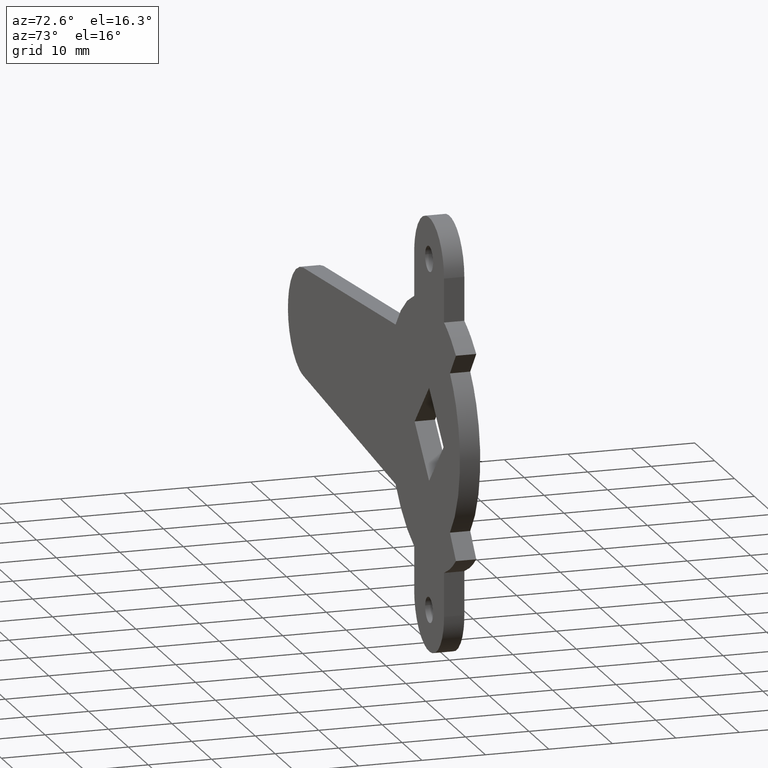
[diagram: clean part render]
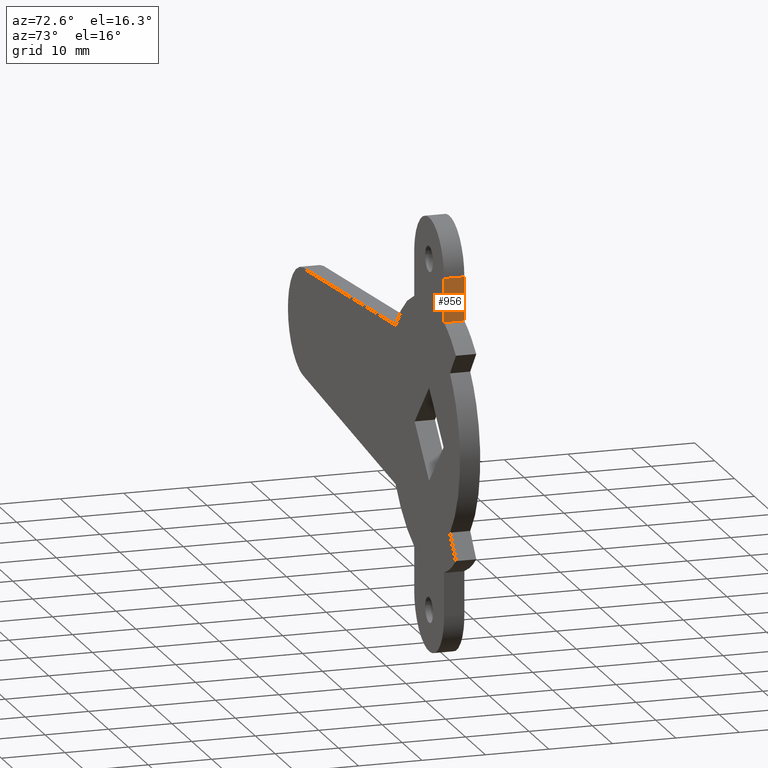
[diagram: same view with one face highlighted and labeled with its STEP entity id]
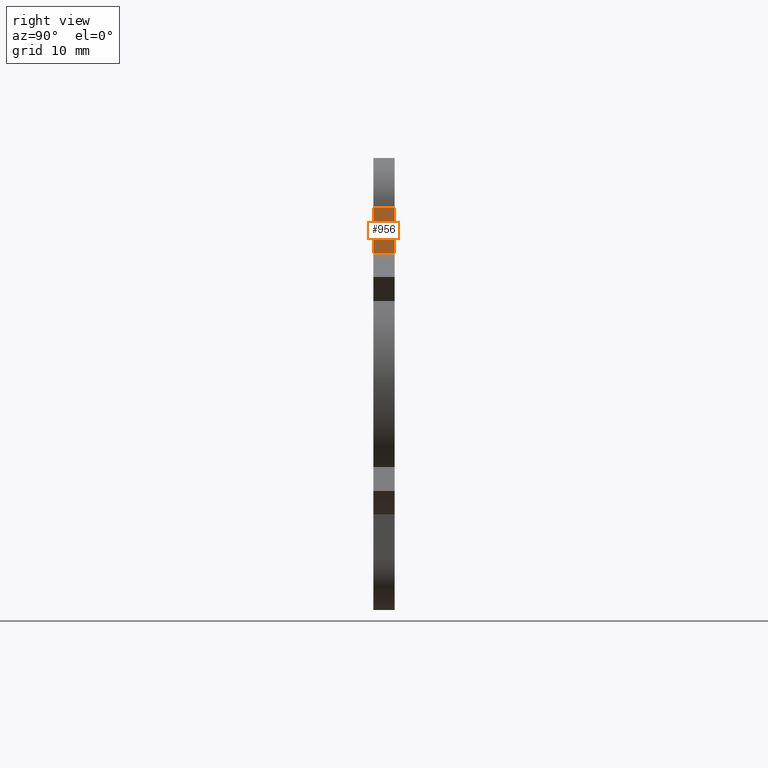
[diagram: same view with one face highlighted and labeled with its STEP entity id]
A machine part, auxiliary view. The second image highlights one B-rep face of the part: STEP entity #956.
A second angle (right view) of the same face is appended — the face is thin or edge-on in the first view.
In plain terms, the highlighted face is a freeform B-spline surface patch.
Its self-contained STEP definition (entity closure, byte-faithful):
#437=CARTESIAN_POINT('',(7.500000000000000,0.0,26.500000000000000));
#438=VERTEX_POINT('',#437);
#454=CARTESIAN_POINT('',(7.500000000000000,0.0,19.615045245933050));
#455=VERTEX_POINT('',#454);
#456=CARTESIAN_POINT('',(7.500000000000000,0.0,19.615045245933050));
#457=CARTESIAN_POINT('',(7.500000000000000,0.0,26.500000000000000));
#458=QUASI_UNIFORM_CURVE('',1,(#456,#457),.UNSPECIFIED.,.F.,.U.);
#459=EDGE_CURVE('',#455,#438,#458,.T.);
#783=CARTESIAN_POINT('',(7.500000000000000,-3.199998000000035,19.615045245933050));
#784=VERTEX_POINT('',#783);
#798=CARTESIAN_POINT('',(7.500000000000000,-3.199998000000035,26.500000000000000));
#799=VERTEX_POINT('',#798);
#800=CARTESIAN_POINT('',(7.500000000000000,-3.199998000000035,19.615045245933050));
#801=CARTESIAN_POINT('',(7.500000000000000,-3.199998000000035,26.500000000000000));
#802=QUASI_UNIFORM_CURVE('',1,(#800,#801),.UNSPECIFIED.,.F.,.U.);
#803=EDGE_CURVE('',#784,#799,#802,.T.);
#933=CARTESIAN_POINT('',(7.500000000000000,-3.199998000000035,26.500000000000000));
#934=CARTESIAN_POINT('',(7.500000000000000,0.0,26.500000000000000));
#935=QUASI_UNIFORM_CURVE('',1,(#933,#934),.UNSPECIFIED.,.F.,.U.);
#936=EDGE_CURVE('',#799,#438,#935,.T.);
#941=CARTESIAN_POINT('',(7.500000000000000,-3.359837803779946,19.271142092466921));
#942=CARTESIAN_POINT('',(7.500000000000000,-3.359837803779946,26.843903645916470));
#943=CARTESIAN_POINT('',(7.500000000000000,0.159839975441179,19.271142092466921));
#944=CARTESIAN_POINT('',(7.500000000000000,0.159839975441179,26.843903645916470));
#945=B_SPLINE_SURFACE_WITH_KNOTS('',1,1,((#941,#943),(#942,#944)),.UNSPECIFIED.,.F.,.F.,.U.,(2,2),(2,2),(0.0,7.572761553449545),(0.0,3.519677779221125),.UNSPECIFIED.);
#946=ORIENTED_EDGE('',*,*,#459,.T.);
#947=ORIENTED_EDGE('',*,*,#936,.F.);
#948=ORIENTED_EDGE('',*,*,#803,.F.);
#949=CARTESIAN_POINT('',(7.500000000000000,-3.199998000000035,19.615045245933050));
#950=CARTESIAN_POINT('',(7.500000000000000,0.0,19.615045245933050));
#951=QUASI_UNIFORM_CURVE('',1,(#949,#950),.UNSPECIFIED.,.F.,.U.);
#952=EDGE_CURVE('',#784,#455,#951,.T.);
#953=ORIENTED_EDGE('',*,*,#952,.T.);
#954=EDGE_LOOP('',(#946,#947,#948,#953));
#955=FACE_OUTER_BOUND('',#954,.T.);
#956=ADVANCED_FACE('',(#955),#945,.F.);